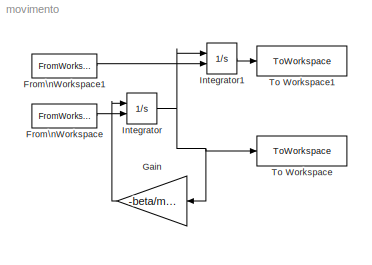
MODEL movimento
KIND model
BLOCK [FromWorkspace] From\nWorkspace
  SID = 8
  SampleTime = 0
  VariableName = Vo
BLOCK [FromWorkspace] From\nWorkspace1
  SID = 10
  SampleTime = 0
  VariableName = Yo
BLOCK [Gain] Gain
  Gain = -beta/massa
  OutDataTypeStr = Inherit: Inherit via internal rule
  ParamDataTypeStr = Inherit: Inherit via internal rule
  SID = 3
  SaturateOnIntegerOverflow = off
BLOCK [Integrator] Integrator
  ContinuousStateAttributes = 'speed'
  InitialConditionSource = external
  Ports = [2, 1]
  SID = 6
BLOCK [Integrator] Integrator1
  InitialConditionSource = external
  Ports = [2, 1]
  SID = 9
BLOCK [ToWorkspace] To Workspace
  FixptAsFi = on
  MaxDataPoints = inf
  Ports = [1]
  SID = 4
  SampleTime = -1
  VariableName = velocity
BLOCK [ToWorkspace] To Workspace1
  FixptAsFi = on
  MaxDataPoints = inf
  Ports = [1]
  SID = 11
  SampleTime = -1
  SaveFormat = Timeseries
  VariableName = position
LINE From\nWorkspace1:1 -> Integrator1:2
LINE From\nWorkspace:1 -> Integrator:2
LINE Gain:1 -> Integrator:1
LINE Integrator1:1 -> To Workspace1:1
NET Integrator:1 -> Gain:1, Integrator1:1, To Workspace:1
note: NET lines group one-source signal fan-out (src -> all destinations, sorted); 1:1 wires keep LINE
